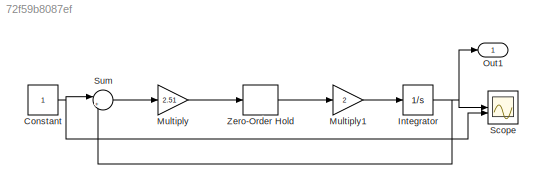
MODEL slx_72f59b8087ef
KIND model
CONFIG AbsTol = auto
CONFIG EnableMultiTasking = off
CONFIG FixedStep = 0.001
CONFIG MaxStep = 0.001
CONFIG MinStep = auto
CONFIG RelTol = 1e-3
CONFIG SampleTimeConstraint = Unconstrained
CONFIG SolverName = FixedStepAuto
CONFIG StartTime = 0.0
CONFIG StopTime = 1
BLOCK [Constant] Constant
BLOCK [Integrator] Integrator
BLOCK [Gain] Multiply
  Gain = 2.51
BLOCK [Gain] Multiply1
  Gain = 2
BLOCK [Outport] Out1
BLOCK [Scope] Scope
  Floating = off
  NumInputPorts = 2
  ScopeSpecificationString = Simulink.scopes.TimeScopeBlockCfg('CurrentConfiguration', extmgr.ConfigurationSet(extmgr.Configuration('Core','General UI',true),extmgr.Configuration('Core','Source UI',true),extmgr.Configuration('Sources','WiredSimulink',true),extmgr.Configuration('Visuals','Time Domain',true,'SerializedDisplays',{struct('MinYLimReal','-0.20332','MaxYLimReal','1.82992','YLabelReal','','MinYLimMag','0.00000','MaxY...<+1429ch>
BLOCK [Sum] Sum
  Inputs = |+-
BLOCK [ZeroOrderHold] Zero-Order Hold
  SampleTime = 0.2
NET Constant:1 -> Scope:2, Sum:1
NET Integrator:1 -> Out1:1, Scope:1, Sum:2
LINE Multiply1:1 -> Integrator:1
LINE Multiply:1 -> Zero-Order Hold:1
LINE Sum:1 -> Multiply:1
LINE Zero-Order Hold:1 -> Multiply1:1
note: NET lines group one-source signal fan-out (src -> all destinations, sorted); 1:1 wires keep LINE
